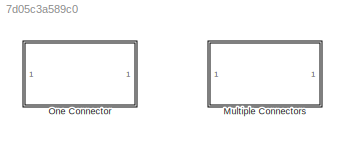
MODEL slx_7d05c3a589c0
KIND library
CONFIG AbsTol = auto
CONFIG EnableMultiTasking = on
CONFIG FixedStep = auto
CONFIG MaxStep = auto
CONFIG MinStep = auto
CONFIG RelTol = 1e-3
CONFIG SampleTimeConstraint = Unconstrained
CONFIG SolverName = ode45
CONFIG StartTime = 0.0
CONFIG StopTime = 10.0
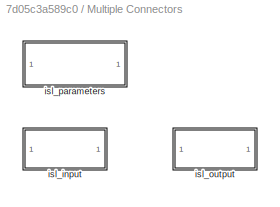
BLOCK [SubSystem] Multiple Connectors
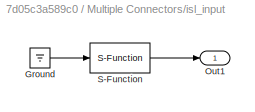
BLOCK [SubSystem] Multiple Connectors/isl_input
BLOCK [Ground] Multiple Connectors/isl_input/Ground
BLOCK [Outport] Multiple Connectors/isl_input/Out1
BLOCK [S-Function] Multiple Connectors/isl_input/S-Function
  EnableBusSupport = off
  FunctionName = isl_input
  Parameters = g_ISLXMLFile,g_ISLStore,g_ISLNotConnect,bSetStepSize,dStepSize
  SFcnIsStateOwnerBlock = off
  SFunctionDeploymentMode = off
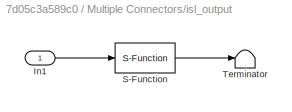
BLOCK [SubSystem] Multiple Connectors/isl_output
BLOCK [Inport] Multiple Connectors/isl_output/In1
BLOCK [S-Function] Multiple Connectors/isl_output/S-Function
  EnableBusSupport = off
  FunctionName = isl_output
  Parameters = g_ISLXMLFile,g_ISLStore,g_ISLNotConnect,bSetStepSize,dStepSize,dInitialStep
  SFcnIsStateOwnerBlock = off
  SFunctionDeploymentMode = off
BLOCK [Terminator] Multiple Connectors/isl_output/Terminator
BLOCK [SubSystem] Multiple Connectors/isl_parameters
  InitFcn = g_ISLXMLFile = get_param(gcb, 'sXMLFile');\ng_ISLStore = double(strcmp(get_param(gcb, 'bStore'), 'on'));\ng_ISLNotConnect = double(strcmp(get_param(gcb, 'bNotConnect'), 'on'));
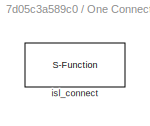
BLOCK [SubSystem] One Connector
BLOCK [S-Function] One Connector/isl_connect
  EnableBusSupport = off
  FunctionName = isl_connector
  Parameters = sXMLFile,bStore,bNotConnect,dInitialStep
  SFcnIsStateOwnerBlock = off
  SFunctionDeploymentMode = off
LINE Multiple Connectors/isl_input/Ground:1 -> Multiple Connectors/isl_input/S-Function:1
LINE Multiple Connectors/isl_input/S-Function:1 -> Multiple Connectors/isl_input/Out1:1
LINE Multiple Connectors/isl_output/In1:1 -> Multiple Connectors/isl_output/S-Function:1
LINE Multiple Connectors/isl_output/S-Function:1 -> Multiple Connectors/isl_output/Terminator:1
